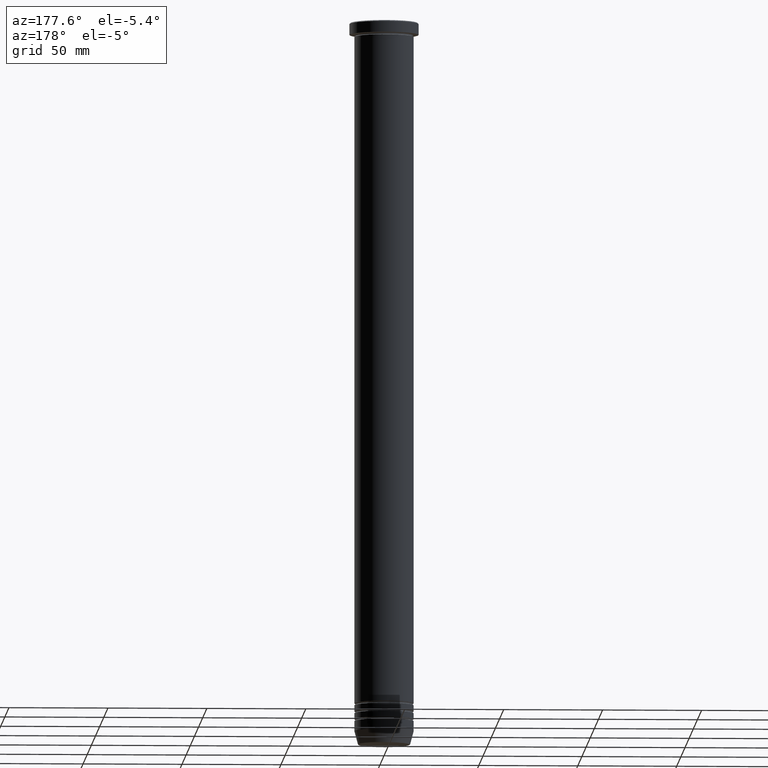
[diagram: clean part render]
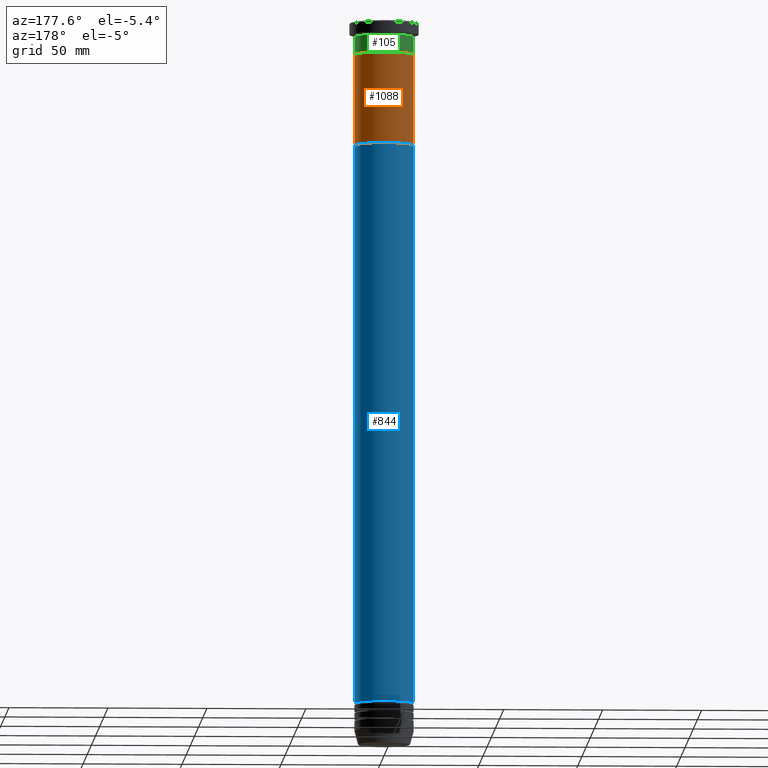
[diagram: same view with three faces highlighted in distinct colors, each labeled with its STEP entity id]
A machine part, auxiliary view with three faces highlighted in distinct colors.
Their STEP definitions:

[orange] entity #1088 — the highlighted cylindrical surface (edge-blend (fillet) strip) has radius 15 mm, axis along (-0, -0, 1).
#62 = FACE_OUTER_BOUND ( 'NONE', #1146, .T. ) ;
#72 = ORIENTED_EDGE ( 'NONE', *, *, #307, .F. ) ;
#77 = CARTESIAN_POINT ( 'NONE',  ( 15.00000000000000000, 0.000000000000000000, -62.00000000000000000 ) ) ;
#141 = ORIENTED_EDGE ( 'NONE', *, *, #802, .T. ) ;
#149 = DIRECTION ( 'NONE',  ( -1.000000000000000000, 0.000000000000000000, 0.000000000000000000 ) ) ;
#235 = CARTESIAN_POINT ( 'NONE',  ( 0.000000000000000000, 0.000000000000000000, -16.00000000000000000 ) ) ;
#305 = CARTESIAN_POINT ( 'NONE',  ( -15.00000000000000000, 1.836970198721029589E-15, -16.00000000000000000 ) ) ;
#307 = EDGE_CURVE ( 'NONE', #333, #1006, #1039, .T. ) ;
#310 = CARTESIAN_POINT ( 'NONE',  ( -15.00000000000000000, 1.836970198721029589E-15, -62.00000000000000000 ) ) ;
#315 = CARTESIAN_POINT ( 'NONE',  ( 0.000000000000000000, 0.000000000000000000, -62.00000000000000000 ) ) ;
#333 = VERTEX_POINT ( 'NONE', #310 ) ;
#359 = CARTESIAN_POINT ( 'NONE',  ( 15.00000000000000000, 0.000000000000000000, -16.00000000000000000 ) ) ;
#392 = VECTOR ( 'NONE', #394, 1000.000000000000000 ) ;
#394 = DIRECTION ( 'NONE',  ( -0.000000000000000000, -0.000000000000000000, 1.000000000000000000 ) ) ;
#398 = EDGE_CURVE ( 'NONE', #922, #534, #815, .T. ) ;
#403 = CARTESIAN_POINT ( 'NONE',  ( 0.000000000000000000, 0.000000000000000000, -62.00000000000000000 ) ) ;
#410 = AXIS2_PLACEMENT_3D ( 'NONE', #235, #574, #149 ) ;
#431 = AXIS2_PLACEMENT_3D ( 'NONE', #403, #674, #655 ) ;
#534 = VERTEX_POINT ( 'NONE', #359 ) ;
#554 = ORIENTED_EDGE ( 'NONE', *, *, #973, .F. ) ;
#556 = DIRECTION ( 'NONE',  ( -1.000000000000000000, 0.000000000000000000, 0.000000000000000000 ) ) ;
#574 = DIRECTION ( 'NONE',  ( 0.000000000000000000, 0.000000000000000000, -1.000000000000000000 ) ) ;
#643 = LINE ( 'NONE', #77, #392 ) ;
#655 = DIRECTION ( 'NONE',  ( 1.000000000000000000, 0.000000000000000000, 0.000000000000000000 ) ) ;
#674 = DIRECTION ( 'NONE',  ( -0.000000000000000000, -0.000000000000000000, 1.000000000000000000 ) ) ;
#676 = LINE ( 'NONE', #682, #836 ) ;
#682 = CARTESIAN_POINT ( 'NONE',  ( -15.00000000000000000, 1.836970198721029589E-15, -62.00000000000000000 ) ) ;
#802 = EDGE_CURVE ( 'NONE', #333, #922, #676, .T. ) ;
#815 = CIRCLE ( 'NONE', #410, 15.00000000000000000 ) ;
#836 = VECTOR ( 'NONE', #1048, 1000.000000000000000 ) ;
#861 = ORIENTED_EDGE ( 'NONE', *, *, #398, .T. ) ;
#922 = VERTEX_POINT ( 'NONE', #305 ) ;
#973 = EDGE_CURVE ( 'NONE', #1006, #534, #643, .T. ) ;
#1006 = VERTEX_POINT ( 'NONE', #1028 ) ;
#1017 = AXIS2_PLACEMENT_3D ( 'NONE', #315, #1113, #556 ) ;
#1028 = CARTESIAN_POINT ( 'NONE',  ( 15.00000000000000000, 0.000000000000000000, -62.00000000000000000 ) ) ;
#1039 = CIRCLE ( 'NONE', #1017, 15.00000000000000000 ) ;
#1048 = DIRECTION ( 'NONE',  ( -0.000000000000000000, -0.000000000000000000, 1.000000000000000000 ) ) ;
#1088 = ADVANCED_FACE ( 'NONE', ( #62 ), #1127, .T. ) ;
#1113 = DIRECTION ( 'NONE',  ( 0.000000000000000000, 0.000000000000000000, -1.000000000000000000 ) ) ;
#1127 = CYLINDRICAL_SURFACE ( 'NONE', #431, 15.00000000000000000 ) ;
#1146 = EDGE_LOOP ( 'NONE', ( #72, #141, #861, #554 ) ) ;

[blue] entity #844 — the highlighted cylindrical surface (edge-blend (fillet) strip) has radius 15 mm, axis along (-0, -0, 1).
#25 = EDGE_CURVE ( 'NONE', #1110, #374, #603, .T. ) ;
#68 = EDGE_CURVE ( 'NONE', #932, #1110, #511, .T. ) ;
#110 = CYLINDRICAL_SURFACE ( 'NONE', #908, 14.99999999999999645 ) ;
#133 = AXIS2_PLACEMENT_3D ( 'NONE', #168, #587, #1045 ) ;
#153 = EDGE_LOOP ( 'NONE', ( #787, #658, #400, #945 ) ) ;
#168 = CARTESIAN_POINT ( 'NONE',  ( 0.000000000000000000, 0.000000000000000000, -345.0000000000000000 ) ) ;
#174 = CARTESIAN_POINT ( 'NONE',  ( 0.000000000000000000, 0.000000000000000000, -62.00000000000000000 ) ) ;
#205 = LINE ( 'NONE', #1074, #477 ) ;
#215 = CARTESIAN_POINT ( 'NONE',  ( 0.000000000000000000, 0.000000000000000000, 0.000000000000000000 ) ) ;
#246 = VECTOR ( 'NONE', #432, 1000.000000000000000 ) ;
#303 = CARTESIAN_POINT ( 'NONE',  ( 15.00000000000000000, 0.000000000000000000, -62.00000000000000000 ) ) ;
#339 = DIRECTION ( 'NONE',  ( 1.000000000000000000, 0.000000000000000000, 0.000000000000000000 ) ) ;
#374 = VERTEX_POINT ( 'NONE', #489 ) ;
#391 = VERTEX_POINT ( 'NONE', #303 ) ;
#400 = ORIENTED_EDGE ( 'NONE', *, *, #468, .F. ) ;
#432 = DIRECTION ( 'NONE',  ( -0.000000000000000000, -0.000000000000000000, 1.000000000000000000 ) ) ;
#456 = DIRECTION ( 'NONE',  ( -0.000000000000000000, -0.000000000000000000, 1.000000000000000000 ) ) ;
#464 = DIRECTION ( 'NONE',  ( 1.000000000000000000, 0.000000000000000000, 0.000000000000000000 ) ) ;
#468 = EDGE_CURVE ( 'NONE', #391, #374, #692, .T. ) ;
#477 = VECTOR ( 'NONE', #909, 1000.000000000000000 ) ;
#489 = CARTESIAN_POINT ( 'NONE',  ( -15.00000000000000000, 1.836970198721029589E-15, -62.00000000000000000 ) ) ;
#511 = CIRCLE ( 'NONE', #133, 14.99999999999999112 ) ;
#587 = DIRECTION ( 'NONE',  ( -0.000000000000000000, -0.000000000000000000, 1.000000000000000000 ) ) ;
#603 = LINE ( 'NONE', #777, #246 ) ;
#658 = ORIENTED_EDGE ( 'NONE', *, *, #25, .T. ) ;
#689 = EDGE_CURVE ( 'NONE', #932, #391, #205, .T. ) ;
#692 = CIRCLE ( 'NONE', #781, 15.00000000000000000 ) ;
#777 = CARTESIAN_POINT ( 'NONE',  ( -14.99999999999999645, 1.836970198721029194E-15, 0.000000000000000000 ) ) ;
#781 = AXIS2_PLACEMENT_3D ( 'NONE', #174, #1138, #339 ) ;
#787 = ORIENTED_EDGE ( 'NONE', *, *, #68, .T. ) ;
#844 = ADVANCED_FACE ( 'NONE', ( #992 ), #110, .T. ) ;
#892 = CARTESIAN_POINT ( 'NONE',  ( 14.99999999999999112, 0.000000000000000000, -345.0000000000000000 ) ) ;
#908 = AXIS2_PLACEMENT_3D ( 'NONE', #215, #456, #464 ) ;
#909 = DIRECTION ( 'NONE',  ( -0.000000000000000000, -0.000000000000000000, 1.000000000000000000 ) ) ;
#932 = VERTEX_POINT ( 'NONE', #892 ) ;
#945 = ORIENTED_EDGE ( 'NONE', *, *, #689, .F. ) ;
#992 = FACE_OUTER_BOUND ( 'NONE', #153, .T. ) ;
#1025 = CARTESIAN_POINT ( 'NONE',  ( -14.99999999999999112, 1.836970198721028800E-15, -345.0000000000000000 ) ) ;
#1045 = DIRECTION ( 'NONE',  ( 1.000000000000000000, 0.000000000000000000, 0.000000000000000000 ) ) ;
#1074 = CARTESIAN_POINT ( 'NONE',  ( 14.99999999999999645, 0.000000000000000000, 0.000000000000000000 ) ) ;
#1110 = VERTEX_POINT ( 'NONE', #1025 ) ;
#1138 = DIRECTION ( 'NONE',  ( -0.000000000000000000, -0.000000000000000000, 1.000000000000000000 ) ) ;

[green] entity #105 — the highlighted cylindrical surface (edge-blend (fillet) strip) has radius 15 mm, axis along (-0, -0, 1).
#15 = CARTESIAN_POINT ( 'NONE',  ( 0.000000000000000000, 0.000000000000000000, -6.999999999999999112 ) ) ;
#56 = ORIENTED_EDGE ( 'NONE', *, *, #458, .T. ) ;
#65 = DIRECTION ( 'NONE',  ( -0.000000000000000000, -0.000000000000000000, 1.000000000000000000 ) ) ;
#97 = CARTESIAN_POINT ( 'NONE',  ( 0.000000000000000000, 0.000000000000000000, 0.000000000000000000 ) ) ;
#105 = ADVANCED_FACE ( 'NONE', ( #967 ), #175, .T. ) ;
#109 = CARTESIAN_POINT ( 'NONE',  ( 15.00000000000000000, 0.000000000000000000, -16.00000000000000000 ) ) ;
#117 = ORIENTED_EDGE ( 'NONE', *, *, #702, .F. ) ;
#175 = CYLINDRICAL_SURFACE ( 'NONE', #429, 15.00000000000000000 ) ;
#245 = VERTEX_POINT ( 'NONE', #109 ) ;
#299 = AXIS2_PLACEMENT_3D ( 'NONE', #966, #784, #335 ) ;
#335 = DIRECTION ( 'NONE',  ( 1.000000000000000000, 0.000000000000000000, 0.000000000000000000 ) ) ;
#338 = AXIS2_PLACEMENT_3D ( 'NONE', #15, #725, #989 ) ;
#384 = VERTEX_POINT ( 'NONE', #938 ) ;
#399 = DIRECTION ( 'NONE',  ( -0.000000000000000000, -0.000000000000000000, 1.000000000000000000 ) ) ;
#413 = EDGE_CURVE ( 'NONE', #826, #384, #494, .T. ) ;
#429 = AXIS2_PLACEMENT_3D ( 'NONE', #97, #519, #670 ) ;
#448 = VECTOR ( 'NONE', #399, 1000.000000000000000 ) ;
#458 = EDGE_CURVE ( 'NONE', #245, #826, #858, .T. ) ;
#465 = VERTEX_POINT ( 'NONE', #869 ) ;
#484 = LINE ( 'NONE', #649, #448 ) ;
#493 = ORIENTED_EDGE ( 'NONE', *, *, #413, .T. ) ;
#494 = LINE ( 'NONE', #663, #672 ) ;
#519 = DIRECTION ( 'NONE',  ( -0.000000000000000000, -0.000000000000000000, 1.000000000000000000 ) ) ;
#620 = EDGE_LOOP ( 'NONE', ( #56, #493, #117, #1013 ) ) ;
#649 = CARTESIAN_POINT ( 'NONE',  ( 15.00000000000000000, 0.000000000000000000, 0.000000000000000000 ) ) ;
#663 = CARTESIAN_POINT ( 'NONE',  ( -15.00000000000000000, 1.836970198721029589E-15, 0.000000000000000000 ) ) ;
#670 = DIRECTION ( 'NONE',  ( 1.000000000000000000, 0.000000000000000000, 0.000000000000000000 ) ) ;
#672 = VECTOR ( 'NONE', #65, 1000.000000000000000 ) ;
#702 = EDGE_CURVE ( 'NONE', #465, #384, #834, .T. ) ;
#725 = DIRECTION ( 'NONE',  ( -0.000000000000000000, -0.000000000000000000, 1.000000000000000000 ) ) ;
#784 = DIRECTION ( 'NONE',  ( -0.000000000000000000, -0.000000000000000000, 1.000000000000000000 ) ) ;
#826 = VERTEX_POINT ( 'NONE', #1056 ) ;
#834 = CIRCLE ( 'NONE', #338, 15.00000000000000000 ) ;
#858 = CIRCLE ( 'NONE', #299, 15.00000000000000000 ) ;
#869 = CARTESIAN_POINT ( 'NONE',  ( 15.00000000000000000, 0.000000000000000000, -6.999999999999999112 ) ) ;
#938 = CARTESIAN_POINT ( 'NONE',  ( -15.00000000000000000, 1.836970198721029589E-15, -6.999999999999999112 ) ) ;
#957 = EDGE_CURVE ( 'NONE', #245, #465, #484, .T. ) ;
#966 = CARTESIAN_POINT ( 'NONE',  ( 0.000000000000000000, 0.000000000000000000, -16.00000000000000000 ) ) ;
#967 = FACE_OUTER_BOUND ( 'NONE', #620, .T. ) ;
#989 = DIRECTION ( 'NONE',  ( 1.000000000000000000, 0.000000000000000000, 0.000000000000000000 ) ) ;
#1013 = ORIENTED_EDGE ( 'NONE', *, *, #957, .F. ) ;
#1056 = CARTESIAN_POINT ( 'NONE',  ( -15.00000000000000000, 1.836970198721029589E-15, -16.00000000000000000 ) ) ;